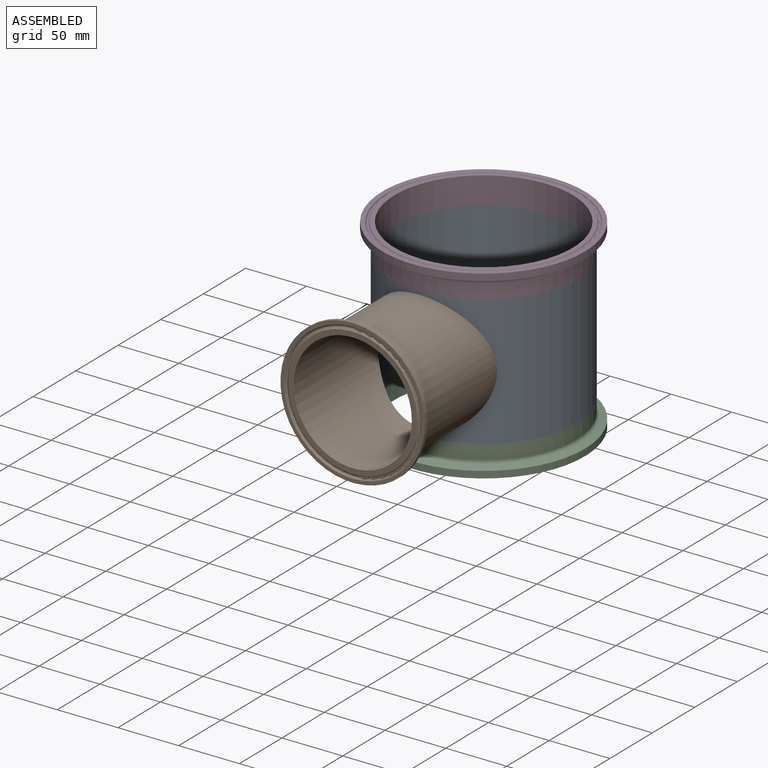
[diagram: assembled view]
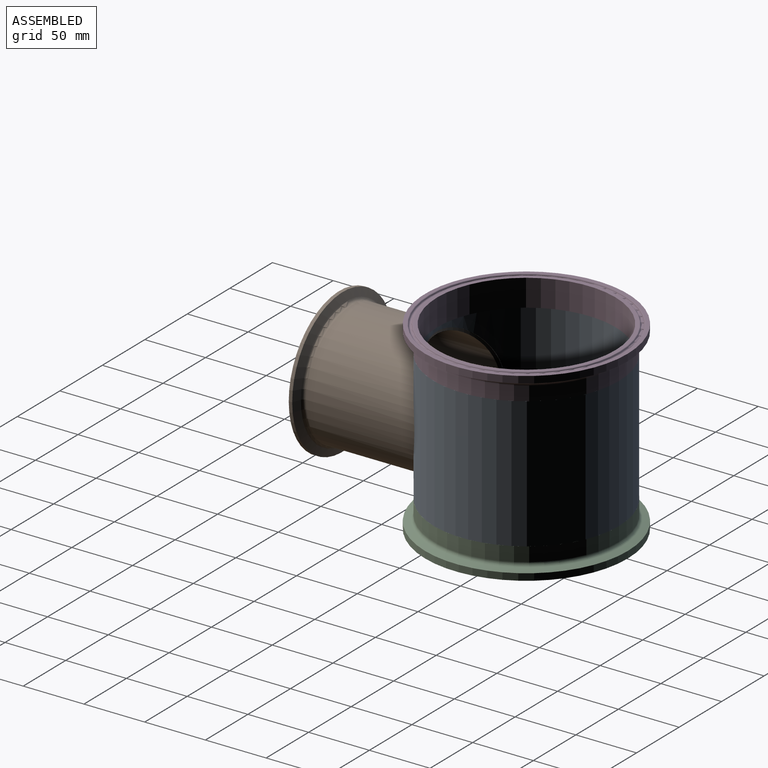
[diagram: assembled view, second angle]
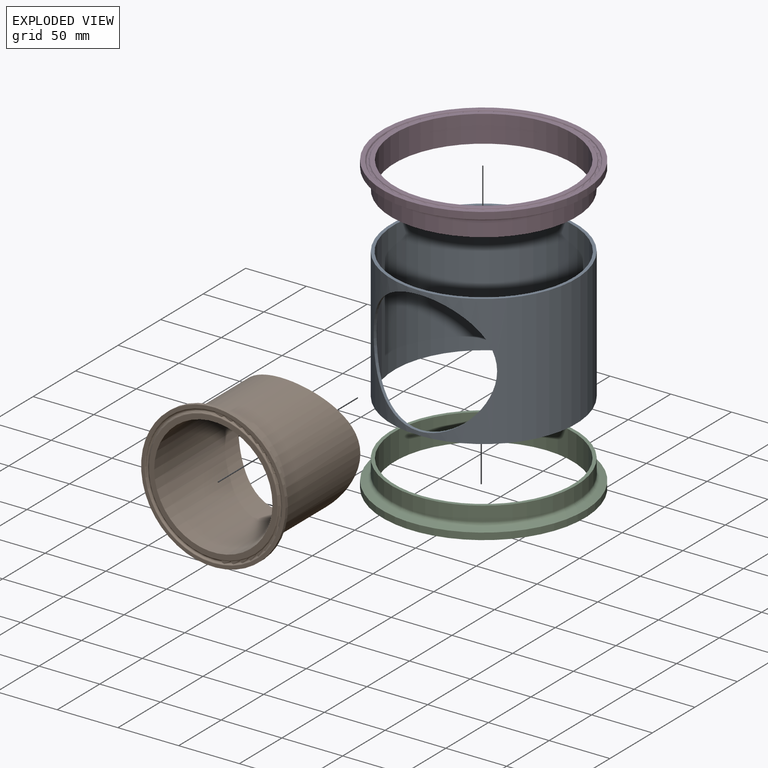
[diagram: exploded view]
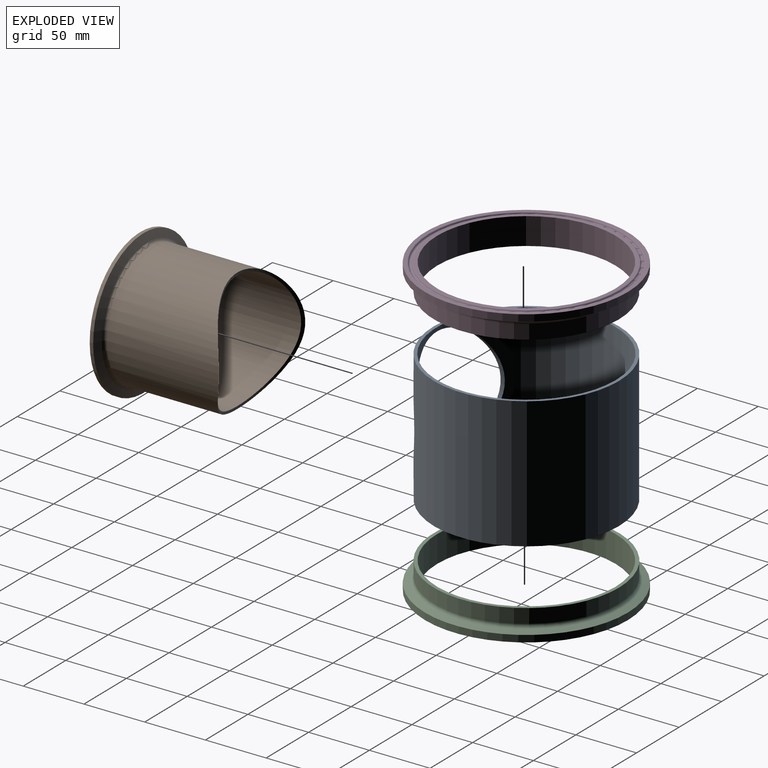
[diagram: exploded view, second angle]
ASSEMBLY  parts=4 mates=3
PART A: 5 faces, bbox 152.4x152.4x108 mm
  f0: cylinder r=73.66mm len=147.32mm, axis (0,0,-1), area 41265mm2, adj f2,f3,f4
  f1: cylinder r=76.2mm len=152.4mm, axis (0,0,-1), area 43040.3mm2, adj f2,f3,f4
  f2: plane 152.4x152.4mm, normal (0,0,1), area 1195.8mm2, adj f0,f1
  f3: plane 152.4x152.4mm, normal (0,0,-1), area 1195.8mm2, adj f0,f1
  f4: cylinder r=50.8mm len=101.6mm, axis (1,0,0), area 937.1mm2, adj f0,f1
PART B: 13 faces, bbox 122.9x100.3x122.9 mm
  f0: cylinder r=59.46mm len=118.92mm, axis (0,-1,0), area 1062.8mm2, adj f1,f10
  f1: cone r=52.89mm half-angle=70deg, axis (0,-1,0), area 2468.6mm2, adj f0,f2
  f2: torus R=53.98mm, axis (0,-1,0), area 1256mm2, adj f1,f3
  f3: cylinder r=50.8mm len=101.6mm, axis (0,-1,0), area 26027.7mm2, adj f2,f12
  f4: cylinder r=48.69mm len=98.4mm, axis (0,-1,0), area 27193mm2, adj f11,f12
  f5: torus R=52.81mm, axis (0,-1,0), area 307.9mm2, adj f6,f11
  f6: cone r=53.7mm half-angle=23deg, axis (0,1,0), area 143.9mm2, adj f5,f7
  f7: torus R=54.8mm, axis (0,-1,0), area 961.3mm2, adj f6,f8
  f8: cone r=56.07mm half-angle=23deg, axis (0,-1,0), area 150.2mm2, adj f7,f9
  f9: torus R=56.79mm, axis (0,-1,0), area 326.2mm2, adj f8,f10
  f10: plane 118.92x118.92mm, normal (0,-1,0), area 975.3mm2, adj f0,f9
  f11: plane 105.62x105.62mm, normal (0,-1,0), area 1313.2mm2, adj f4,f5
  f12: cylinder r=73.66mm len=101.61mm, axis (0,0,1), area 764.3mm2, adj f3,f4
PART C: 13 faces, bbox 174.1x22.2x174.1 mm
  f0: cylinder r=83.44mm len=166.88mm, axis (0,-1,0), area 2929.6mm2, adj f1,f10
  f1: cone r=78.29mm half-angle=70deg, axis (0,-1,0), area 2784.5mm2, adj f0,f2
  f2: torus R=79.38mm, axis (0,-1,0), area 1875mm2, adj f1,f3
  f3: cylinder r=76.2mm len=152.4mm, axis (0,-1,0), area 5639.6mm2, adj f2,f12
  f4: cylinder r=73.43mm len=146.86mm, axis (0,-1,0), area 10254.2mm2, adj f11,f12
  f5: torus R=76.44mm, axis (0,-1,0), area 444.6mm2, adj f6,f11
  f6: cone r=77.34mm half-angle=23deg, axis (0,1,0), area 207.3mm2, adj f5,f7
  f7: torus R=78.44mm, axis (0,-1,0), area 1376mm2, adj f6,f8
  f8: cone r=79.7mm half-angle=23deg, axis (0,-1,0), area 213.6mm2, adj f7,f9
  f9: torus R=80.43mm, axis (0,-1,0), area 462.9mm2, adj f8,f10
  f10: plane 166.88x166.88mm, normal (0,-1,0), area 1551.2mm2, adj f0,f9
  f11: plane 152.89x152.89mm, normal (0,-1,0), area 1418.8mm2, adj f4,f5
  f12: plane 152.4x152.4mm, normal (0,1,0), area 1301.5mm2, adj f3,f4
PART D: same geometry as C
PLACE A rot(axis=(0.71,0.71,0),180deg) t=(-161.35,-3.65,70.66)mm
PLACE B t=(-161.35,-157.71,16.68)mm
PLACE C rot(axis=(0.58,0.58,0.58),120deg) t=(-161.35,-3.65,-59.52)mm
PLACE D rot(axis=(-0.58,-0.58,0.58),120deg) t=(-161.35,-3.65,92.88)mm
MATE fastened A.f4 <-> B.f0  axis (0,1,0) through (-161.35,-56.67,16.68)mm
MATE fastened C.f0 <-> A.f1  axis (0,0,1) through (-161.35,-3.65,-37.29)mm
MATE fastened A.f1 <-> D.f0  axis (0,0,1) through (-161.35,-3.65,70.66)mm
